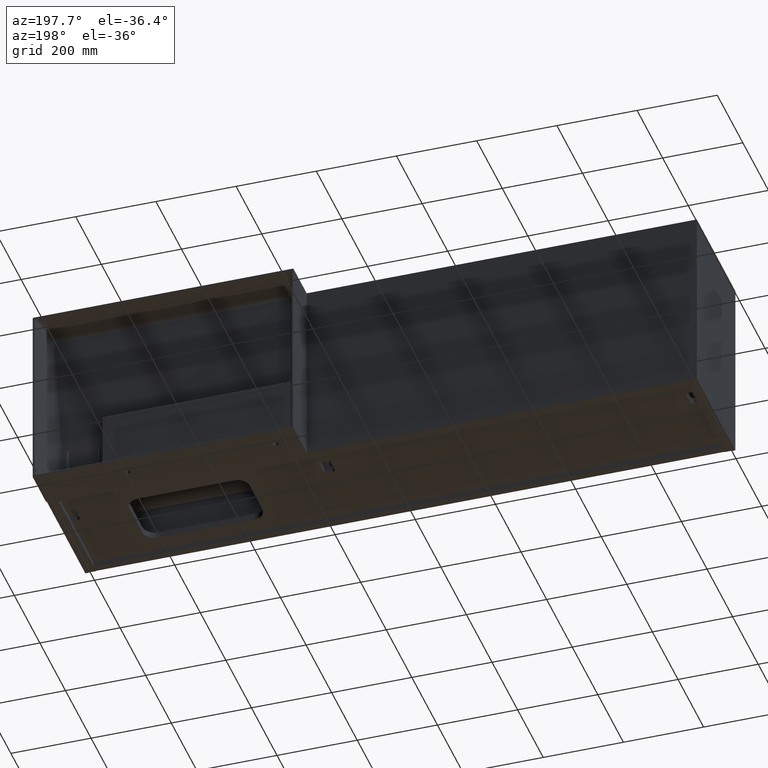
[diagram: clean part render]
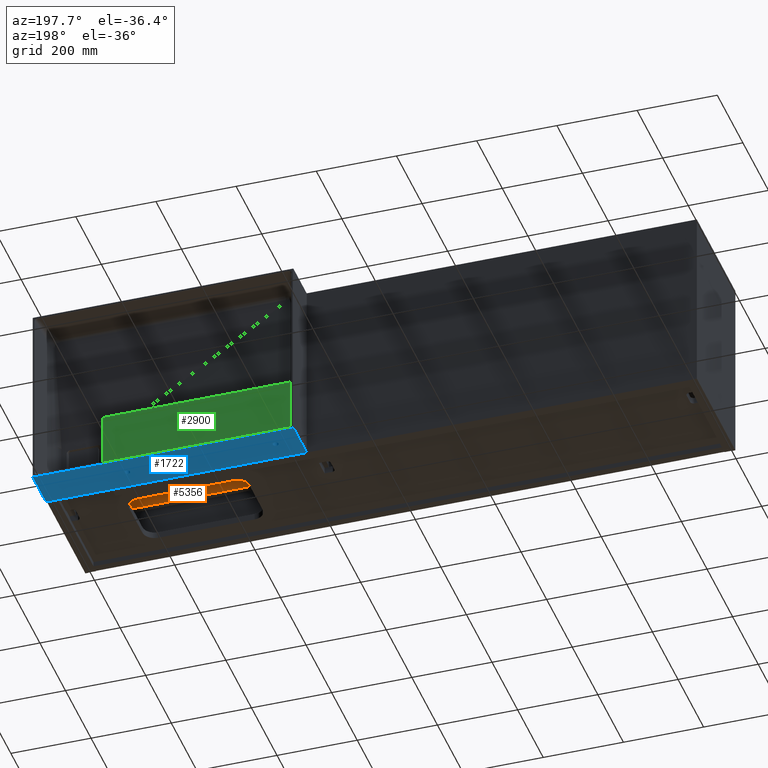
[diagram: same view with three faces highlighted in distinct colors, each labeled with its STEP entity id]
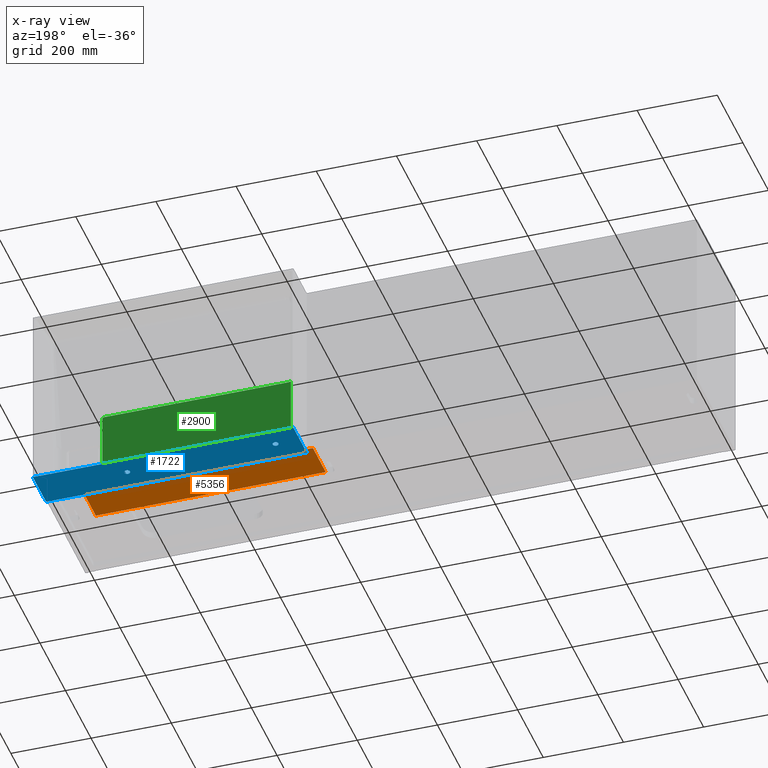
[diagram: x-ray of the same camera — body ghosted, the three highlighted faces saturated]
A machine part, auxiliary view with three faces highlighted in distinct colors.
The next image is the same camera in x-ray (body ghosted, the three faces saturated) — at least one of them is partly hidden behind the body in this view.
Their STEP definitions:

[orange] entity #5356 — the highlighted planar face has unit normal (0, 0, 1).
#124 = VECTOR ( 'NONE', #14026, 1000.000000000000000 ) ;
#387 = CARTESIAN_POINT ( 'NONE',  ( 1003.500000000000227, 61.49999999999995737, -354.0000000000000000 ) ) ;
#940 = DIRECTION ( 'NONE',  ( 0.0000000000000000000, -1.000000000000000000, 1.457098049790435372E-32 ) ) ;
#1056 = CARTESIAN_POINT ( 'NONE',  ( 1003.500000000000227, 162.4999999999999716, -354.0000000000000000 ) ) ;
#1235 = VECTOR ( 'NONE', #6049, 1000.000000000000000 ) ;
#1893 = ORIENTED_EDGE ( 'NONE', *, *, #15884, .F. ) ;
#2177 = PLANE ( 'NONE',  #2853 ) ;
#2853 = AXIS2_PLACEMENT_3D ( 'NONE', #7162, #12152, #940 ) ;
#2884 = CARTESIAN_POINT ( 'NONE',  ( 1003.500000000000227, 162.4999999999999716, -354.0000000000000000 ) ) ;
#3490 = DIRECTION ( 'NONE',  ( -1.000000000000000000, 1.209920471474670061E-16, -0.0000000000000000000 ) ) ;
#3699 = CARTESIAN_POINT ( 'NONE',  ( 1577.000000000000000, 162.4999999999998863, -354.0000000000000000 ) ) ;
#4043 = LINE ( 'NONE', #9028, #124 ) ;
#4589 = CARTESIAN_POINT ( 'NONE',  ( 1577.000000000000000, 61.49999999999988631, -354.0000000000000000 ) ) ;
#5356 = ADVANCED_FACE ( 'NONE', ( #13399 ), #2177, .F. ) ;
#5915 = VECTOR ( 'NONE', #3490, 1000.000000000000000 ) ;
#6049 = DIRECTION ( 'NONE',  ( -1.000000000000000000, 1.209920471474670061E-16, -0.0000000000000000000 ) ) ;
#6218 = ORIENTED_EDGE ( 'NONE', *, *, #11640, .T. ) ;
#6637 = VERTEX_POINT ( 'NONE', #15007 ) ;
#6684 = VERTEX_POINT ( 'NONE', #2884 ) ;
#7162 = CARTESIAN_POINT ( 'NONE',  ( 1003.500000000000227, 162.4999999999999716, -354.0000000000000000 ) ) ;
#8024 = ORIENTED_EDGE ( 'NONE', *, *, #11995, .F. ) ;
#8268 = VERTEX_POINT ( 'NONE', #387 ) ;
#8689 = DIRECTION ( 'NONE',  ( -1.203624267806977720E-16, -1.000000000000000000, 1.457098049790435372E-32 ) ) ;
#9028 = CARTESIAN_POINT ( 'NONE',  ( 1003.500000000000227, 162.4999999999999716, -354.0000000000000000 ) ) ;
#9702 = LINE ( 'NONE', #14704, #5915 ) ;
#10199 = EDGE_LOOP ( 'NONE', ( #15179, #8024, #1893, #6218 ) ) ;
#11640 = EDGE_CURVE ( 'NONE', #6637, #13417, #14911, .T. ) ;
#11995 = EDGE_CURVE ( 'NONE', #6684, #8268, #4043, .T. ) ;
#12152 = DIRECTION ( 'NONE',  ( 1.762972759387265858E-48, 1.457098049790435372E-32, 1.000000000000000000 ) ) ;
#12266 = LINE ( 'NONE', #1056, #1235 ) ;
#12404 = VECTOR ( 'NONE', #8689, 1000.000000000000000 ) ;
#13399 = FACE_OUTER_BOUND ( 'NONE', #10199, .T. ) ;
#13417 = VERTEX_POINT ( 'NONE', #4589 ) ;
#13546 = EDGE_CURVE ( 'NONE', #13417, #8268, #9702, .T. ) ;
#14026 = DIRECTION ( 'NONE',  ( -1.203624267806977720E-16, -1.000000000000000000, 1.457098049790435372E-32 ) ) ;
#14704 = CARTESIAN_POINT ( 'NONE',  ( 1003.500000000000227, 61.49999999999995737, -354.0000000000000000 ) ) ;
#14911 = LINE ( 'NONE', #3699, #12404 ) ;
#15007 = CARTESIAN_POINT ( 'NONE',  ( 1577.000000000000000, 162.4999999999998863, -354.0000000000000000 ) ) ;
#15179 = ORIENTED_EDGE ( 'NONE', *, *, #13546, .T. ) ;
#15884 = EDGE_CURVE ( 'NONE', #6637, #6684, #12266, .T. ) ;

[blue] entity #1722 — the highlighted planar face has unit normal (0, 0, 1).
#531 = DIRECTION ( 'NONE',  ( 0.0000000000000000000, -1.000000000000000000, -0.0000000000000000000 ) ) ;
#1113 = CARTESIAN_POINT ( 'NONE',  ( 1625.000000000000227, 404.9999999999999432, -470.0000000000000000 ) ) ;
#1224 = VECTOR ( 'NONE', #8495, 1000.000000000000000 ) ;
#1382 = CARTESIAN_POINT ( 'NONE',  ( 975.0000000000003411, 403.9999999999999432, -470.0000000000000000 ) ) ;
#1446 = DIRECTION ( 'NONE',  ( 1.000000000000000000, 0.0000000000000000000, 0.0000000000000000000 ) ) ;
#1509 = DIRECTION ( 'NONE',  ( -1.000000000000000000, -0.0000000000000000000, -0.0000000000000000000 ) ) ;
#1512 = EDGE_LOOP ( 'NONE', ( #14058, #11191 ) ) ;
#1693 = AXIS2_PLACEMENT_3D ( 'NONE', #10314, #15313, #4099 ) ;
#1722 = ADVANCED_FACE ( 'NONE', ( #13567, #2346, #7329 ), #12320, .F. ) ;
#2217 = AXIS2_PLACEMENT_3D ( 'NONE', #16000, #4784, #9771 ) ;
#2346 = FACE_BOUND ( 'NONE', #1512, .T. ) ;
#2361 = EDGE_CURVE ( 'NONE', #8628, #10776, #7737, .T. ) ;
#2493 = ORIENTED_EDGE ( 'NONE', *, *, #11138, .T. ) ;
#2683 = VERTEX_POINT ( 'NONE', #10017 ) ;
#3510 = CARTESIAN_POINT ( 'NONE',  ( 975.0000000000003411, 404.9999999999999432, -470.0000000000000000 ) ) ;
#3592 = ORIENTED_EDGE ( 'NONE', *, *, #16112, .T. ) ;
#3609 = ORIENTED_EDGE ( 'NONE', *, *, #3761, .T. ) ;
#3625 = VERTEX_POINT ( 'NONE', #15051 ) ;
#3761 = EDGE_CURVE ( 'NONE', #8628, #2683, #6757, .T. ) ;
#4099 = DIRECTION ( 'NONE',  ( 1.000000000000000000, 0.0000000000000000000, 0.0000000000000000000 ) ) ;
#4131 = CARTESIAN_POINT ( 'NONE',  ( 1625.000000000000227, 403.9999999999999432, -470.0000000000000000 ) ) ;
#4191 = CARTESIAN_POINT ( 'NONE',  ( 1412.000000000000227, 355.0000000000000000, -470.0000000000000000 ) ) ;
#4606 = VERTEX_POINT ( 'NONE', #13767 ) ;
#4723 = CARTESIAN_POINT ( 'NONE',  ( 1405.000000000000227, 355.0000000000000000, -470.0000000000000000 ) ) ;
#4784 = DIRECTION ( 'NONE',  ( -0.0000000000000000000, -0.0000000000000000000, 1.000000000000000000 ) ) ;
#4978 = DIRECTION ( 'NONE',  ( 1.000000000000000000, -0.0000000000000000000, -0.0000000000000000000 ) ) ;
#6107 = DIRECTION ( 'NONE',  ( 0.0000000000000000000, 0.0000000000000000000, 1.000000000000000000 ) ) ;
#6389 = VERTEX_POINT ( 'NONE', #10273 ) ;
#6738 = CIRCLE ( 'NONE', #15891, 6.999999999999895195 ) ;
#6757 = LINE ( 'NONE', #11742, #11014 ) ;
#7329 = FACE_OUTER_BOUND ( 'NONE', #9792, .T. ) ;
#7508 = VECTOR ( 'NONE', #4978, 1000.000000000000000 ) ;
#7678 = CARTESIAN_POINT ( 'NONE',  ( 1035.000000000000227, 355.0000000000000000, -470.0000000000000000 ) ) ;
#7737 = LINE ( 'NONE', #12725, #8118 ) ;
#7849 = ORIENTED_EDGE ( 'NONE', *, *, #16009, .F. ) ;
#8112 = VERTEX_POINT ( 'NONE', #12344 ) ;
#8118 = VECTOR ( 'NONE', #1509, 1000.000000000000000 ) ;
#8495 = DIRECTION ( 'NONE',  ( 0.0000000000000000000, -1.000000000000000000, -0.0000000000000000000 ) ) ;
#8628 = VERTEX_POINT ( 'NONE', #4131 ) ;
#8757 = CIRCLE ( 'NONE', #1693, 6.999999999999895195 ) ;
#8924 = AXIS2_PLACEMENT_3D ( 'NONE', #1113, #6107, #11104 ) ;
#9277 = CIRCLE ( 'NONE', #2217, 6.999999999999895195 ) ;
#9716 = DIRECTION ( 'NONE',  ( -0.0000000000000000000, -0.0000000000000000000, 1.000000000000000000 ) ) ;
#9771 = DIRECTION ( 'NONE',  ( 1.000000000000000000, 0.0000000000000000000, 0.0000000000000000000 ) ) ;
#9792 = EDGE_LOOP ( 'NONE', ( #3609, #7849, #9981, #11075 ) ) ;
#9981 = ORIENTED_EDGE ( 'NONE', *, *, #15004, .F. ) ;
#10017 = CARTESIAN_POINT ( 'NONE',  ( 1625.000000000000227, 300.0000000000000000, -470.0000000000000000 ) ) ;
#10273 = CARTESIAN_POINT ( 'NONE',  ( 1028.000000000000227, 355.0000000000000000, -470.0000000000000000 ) ) ;
#10314 = CARTESIAN_POINT ( 'NONE',  ( 1405.000000000000227, 355.0000000000000000, -470.0000000000000000 ) ) ;
#10776 = VERTEX_POINT ( 'NONE', #1382 ) ;
#11014 = VECTOR ( 'NONE', #531, 1000.000000000000000 ) ;
#11075 = ORIENTED_EDGE ( 'NONE', *, *, #2361, .F. ) ;
#11104 = DIRECTION ( 'NONE',  ( -1.000000000000000000, 0.0000000000000000000, 0.0000000000000000000 ) ) ;
#11138 = EDGE_CURVE ( 'NONE', #3625, #6389, #9277, .T. ) ;
#11191 = ORIENTED_EDGE ( 'NONE', *, *, #12438, .T. ) ;
#11203 = LINE ( 'NONE', #16195, #7508 ) ;
#11742 = CARTESIAN_POINT ( 'NONE',  ( 1625.000000000000227, 404.9999999999999432, -470.0000000000000000 ) ) ;
#11775 = EDGE_CURVE ( 'NONE', #14254, #8112, #8757, .T. ) ;
#12320 = PLANE ( 'NONE',  #8924 ) ;
#12344 = CARTESIAN_POINT ( 'NONE',  ( 1398.000000000000455, 355.0000000000000000, -470.0000000000000000 ) ) ;
#12418 = CIRCLE ( 'NONE', #14519, 6.999999999999895195 ) ;
#12438 = EDGE_CURVE ( 'NONE', #8112, #14254, #12418, .T. ) ;
#12665 = DIRECTION ( 'NONE',  ( -0.0000000000000000000, -0.0000000000000000000, 1.000000000000000000 ) ) ;
#12725 = CARTESIAN_POINT ( 'NONE',  ( 1625.000000000000227, 403.9999999999999432, -470.0000000000000000 ) ) ;
#13567 = FACE_BOUND ( 'NONE', #15911, .T. ) ;
#13767 = CARTESIAN_POINT ( 'NONE',  ( 975.0000000000003411, 300.0000000000000000, -470.0000000000000000 ) ) ;
#14058 = ORIENTED_EDGE ( 'NONE', *, *, #11775, .T. ) ;
#14254 = VERTEX_POINT ( 'NONE', #4191 ) ;
#14519 = AXIS2_PLACEMENT_3D ( 'NONE', #4723, #9716, #14720 ) ;
#14720 = DIRECTION ( 'NONE',  ( 1.000000000000000000, 0.0000000000000000000, 0.0000000000000000000 ) ) ;
#14726 = LINE ( 'NONE', #3510, #1224 ) ;
#15004 = EDGE_CURVE ( 'NONE', #10776, #4606, #14726, .T. ) ;
#15051 = CARTESIAN_POINT ( 'NONE',  ( 1042.000000000000000, 355.0000000000000000, -470.0000000000000000 ) ) ;
#15313 = DIRECTION ( 'NONE',  ( -0.0000000000000000000, -0.0000000000000000000, 1.000000000000000000 ) ) ;
#15891 = AXIS2_PLACEMENT_3D ( 'NONE', #7678, #12665, #1446 ) ;
#15911 = EDGE_LOOP ( 'NONE', ( #2493, #3592 ) ) ;
#16000 = CARTESIAN_POINT ( 'NONE',  ( 1035.000000000000227, 355.0000000000000000, -470.0000000000000000 ) ) ;
#16009 = EDGE_CURVE ( 'NONE', #4606, #2683, #11203, .T. ) ;
#16112 = EDGE_CURVE ( 'NONE', #6389, #3625, #6738, .T. ) ;
#16195 = CARTESIAN_POINT ( 'NONE',  ( 1625.000000000000227, 300.0000000000000000, -470.0000000000000000 ) ) ;

[green] entity #2900 — the highlighted planar face has unit normal (0, 1, 0).
#141 = CARTESIAN_POINT ( 'NONE',  ( 985.6307633916155737, 395.0000000000001137, -324.8999211131446714 ) ) ;
#230 = ORIENTED_EDGE ( 'NONE', *, *, #805, .F. ) ;
#591 = CARTESIAN_POINT ( 'NONE',  ( 992.0093630388657857, 395.0000000000000000, -325.9741568709216608 ) ) ;
#763 = LINE ( 'NONE', #5750, #8694 ) ;
#805 = EDGE_CURVE ( 'NONE', #16010, #14791, #1109, .T. ) ;
#813 = CARTESIAN_POINT ( 'NONE',  ( 1454.258164734801085, 395.0000000000000568, -455.4245869311437218 ) ) ;
#1109 = LINE ( 'NONE', #6103, #15481 ) ;
#1280 = CARTESIAN_POINT ( 'NONE',  ( 1454.025843129078567, 395.0000000000000000, -451.1449057083924004 ) ) ;
#1330 = EDGE_CURVE ( 'NONE', #11326, #2754, #2211, .T. ) ;
#1366 = CARTESIAN_POINT ( 'NONE',  ( 988.2355843847058168, 395.0000000000001705, -325.7355729384424308 ) ) ;
#1738 = DIRECTION ( 'NONE',  ( 0.0000000000000000000, 0.0000000000000000000, 1.000000000000000000 ) ) ;
#1788 = CARTESIAN_POINT ( 'NONE',  ( 1456.903768405305982, 395.0000000000000000, -460.7858540997308410 ) ) ;
#2040 = CARTESIAN_POINT ( 'NONE',  ( 1454.961618533546698, 395.0000000000002842, -457.9211539023941668 ) ) ;
#2211 = B_SPLINE_CURVE_WITH_KNOTS ( 'NONE', 3,
 ( #3838, #8820, #13817, #2603, #7588, #12577, #1366, #6361, #11354, #141, #5134, #10133, #15129, #3915 ),
 .UNSPECIFIED., .F., .F.,
 ( 4, 2, 2, 2, 2, 2, 4 ),
 ( 0.0000000000000000000, 0.002062643345217384915, 0.003093965017826077590, 0.004125286690434769830, 0.006187930035651793489, 0.007219251708260456674, 0.008250573380869119858 ),
 .UNSPECIFIED. ) ;
#2318 = DIRECTION ( 'NONE',  ( -1.982541115402065356E-16, 0.0000000000000000000, 1.000000000000000000 ) ) ;
#2555 = CARTESIAN_POINT ( 'NONE',  ( 1450.027213829176389, 395.0000000000000000, -325.9741568709216608 ) ) ;
#2603 = CARTESIAN_POINT ( 'NONE',  ( 989.6031032880887324, 395.0000000000003979, -325.9081120509785592 ) ) ;
#2658 = ORIENTED_EDGE ( 'NONE', *, *, #14034, .F. ) ;
#2754 = VERTEX_POINT ( 'NONE', #5180 ) ;
#2899 = AXIS2_PLACEMENT_3D ( 'NONE', #7962, #12963, #1738 ) ;
#2900 = ADVANCED_FACE ( 'NONE', ( #14192 ), #2978, .T. ) ;
#2978 = PLANE ( 'NONE',  #2899 ) ;
#3024 = EDGE_LOOP ( 'NONE', ( #230, #5083, #10577, #11460, #11112, #2658, #16187 ) ) ;
#3276 = CARTESIAN_POINT ( 'NONE',  ( 1455.759523895694201, 394.9999999999998295, -459.4611088881936212 ) ) ;
#3604 = CARTESIAN_POINT ( 'NONE',  ( 1450.027213829176389, 395.0000000000000000, -325.9741568709216608 ) ) ;
#3789 = CARTESIAN_POINT ( 'NONE',  ( 1454.025843129078567, 395.0000000000000000, -329.9727861708239516 ) ) ;
#3798 = CARTESIAN_POINT ( 'NONE',  ( 1300.000000000000227, 395.0000000000000000, -325.9741568709216608 ) ) ;
#3838 = CARTESIAN_POINT ( 'NONE',  ( 992.0093630388657857, 395.0000000000000000, -325.9741568709216608 ) ) ;
#3915 = CARTESIAN_POINT ( 'NONE',  ( 984.2141459002693864, 395.0000000000000000, -323.9227097565687927 ) ) ;
#4334 = EDGE_CURVE ( 'NONE', #14791, #9485, #14321, .T. ) ;
#4499 = CARTESIAN_POINT ( 'NONE',  ( 1456.903768405305982, 395.0000000000000000, -460.7858540997308410 ) ) ;
#4582 = CARTESIAN_POINT ( 'NONE',  ( 1454.025843129078567, 395.0000000000000000, -451.1449057083924004 ) ) ;
#5083 = ORIENTED_EDGE ( 'NONE', *, *, #8752, .F. ) ;
#5134 = CARTESIAN_POINT ( 'NONE',  ( 985.3243234332736620, 395.0000000000000000, -324.7357828460448559 ) ) ;
#5180 = CARTESIAN_POINT ( 'NONE',  ( 984.2141459002693864, 395.0000000000000000, -323.9227097565687927 ) ) ;
#5750 = CARTESIAN_POINT ( 'NONE',  ( 984.2141459002693864, 395.0000000000000000, -235.0000000000000853 ) ) ;
#5804 = CARTESIAN_POINT ( 'NONE',  ( 1454.147612315442984, 394.9999999999998295, -454.5767451132575161 ) ) ;
#6103 = CARTESIAN_POINT ( 'NONE',  ( 1300.000000000000227, 395.0000000000000000, -460.7858540997308410 ) ) ;
#6162 = CARTESIAN_POINT ( 'NONE',  ( 1454.025843129078567, 395.0000000000000000, -329.9727861708239516 ) ) ;
#6361 = CARTESIAN_POINT ( 'NONE',  ( 987.2286717636822004, 395.0000000000001137, -325.5247354199295842 ) ) ;
#7032 = CARTESIAN_POINT ( 'NONE',  ( 1454.669399297988321, 395.0000000000002842, -457.0962568864613331 ) ) ;
#7451 = EDGE_CURVE ( 'NONE', #15929, #11326, #15009, .T. ) ;
#7588 = CARTESIAN_POINT ( 'NONE',  ( 989.2604613877726933, 394.9999999999998863, -325.8775157247927723 ) ) ;
#7962 = CARTESIAN_POINT ( 'NONE',  ( 1300.000000000000227, 395.0000000000000000, -235.0000000000000000 ) ) ;
#8262 = CARTESIAN_POINT ( 'NONE',  ( 1455.531474925528528, 395.0000000000001137, -459.0918373645997690 ) ) ;
#8534 = LINE ( 'NONE', #13541, #13253 ) ;
#8694 = VECTOR ( 'NONE', #10756, 1000.000000000000000 ) ;
#8752 = EDGE_CURVE ( 'NONE', #2754, #16010, #763, .T. ) ;
#8773 = CARTESIAN_POINT ( 'NONE',  ( 1454.025843129078112, 394.9999999999999432, -327.6301110647708015 ) ) ;
#8782 = DIRECTION ( 'NONE',  ( -1.000000000000000000, 0.0000000000000000000, 5.843279076974509016E-17 ) ) ;
#8820 = CARTESIAN_POINT ( 'NONE',  ( 991.3208708988747730, 395.0000000000000000, -325.9741568709463877 ) ) ;
#8968 = VERTEX_POINT ( 'NONE', #6162 ) ;
#9485 = VERTEX_POINT ( 'NONE', #1280 ) ;
#9493 = CARTESIAN_POINT ( 'NONE',  ( 1456.579626220514228, 394.9999999999998863, -460.4889491759980160 ) ) ;
#9976 = CARTESIAN_POINT ( 'NONE',  ( 984.2141459002693864, 395.0000000000000000, -460.7858540997308410 ) ) ;
#10133 = CARTESIAN_POINT ( 'NONE',  ( 984.7455617612929473, 394.9999999999999432, -324.3644778535575597 ) ) ;
#10577 = ORIENTED_EDGE ( 'NONE', *, *, #1330, .F. ) ;
#10756 = DIRECTION ( 'NONE',  ( 2.413528314402515076E-16, -0.0000000000000000000, -1.000000000000000000 ) ) ;
#10807 = CARTESIAN_POINT ( 'NONE',  ( 1454.029782195307234, 394.9999999999999432, -452.8680177196098384 ) ) ;
#11100 = DIRECTION ( 'NONE',  ( 1.000000000000000000, -0.0000000000000000000, -0.0000000000000000000 ) ) ;
#11112 = ORIENTED_EDGE ( 'NONE', *, *, #14122, .F. ) ;
#11326 = VERTEX_POINT ( 'NONE', #591 ) ;
#11354 = CARTESIAN_POINT ( 'NONE',  ( 986.5742237291171932, 395.0000000000001137, -325.3268668704505444 ) ) ;
#11448 =( BOUNDED_CURVE ( )  B_SPLINE_CURVE ( 3, ( #3789, #8773, #13772, #2555 ),
 .UNSPECIFIED., .F., .F. ) 
 B_SPLINE_CURVE_WITH_KNOTS ( ( 4, 4 ),
 ( 2.356537106530507408, 3.926648200649022868 ),
 .UNSPECIFIED. ) 
 CURVE ( )  GEOMETRIC_REPRESENTATION_ITEM ( )  RATIONAL_B_SPLINE_CURVE ( ( 1.000000000000000000, 0.8048993373437902665, 0.8048993373437902665, 1.000000000000000000 ) ) 
 REPRESENTATION_ITEM ( '' )  );
#11460 = ORIENTED_EDGE ( 'NONE', *, *, #7451, .F. ) ;
#11531 = VECTOR ( 'NONE', #8782, 1000.000000000000000 ) ;
#12018 = CARTESIAN_POINT ( 'NONE',  ( 1454.550745626456091, 395.0000000000000000, -456.6803406497029414 ) ) ;
#12577 = CARTESIAN_POINT ( 'NONE',  ( 988.5764921108858516, 394.9999999999999432, -325.7912511627890240 ) ) ;
#12963 = DIRECTION ( 'NONE',  ( 0.0000000000000000000, 1.000000000000000000, 0.0000000000000000000 ) ) ;
#13253 = VECTOR ( 'NONE', #2318, 1000.000000000000000 ) ;
#13266 = CARTESIAN_POINT ( 'NONE',  ( 1455.132669146402350, 395.0000000000000568, -458.3223080525927458 ) ) ;
#13541 = CARTESIAN_POINT ( 'NONE',  ( 1454.025843129078567, 395.0000000000000000, -235.0000000000000000 ) ) ;
#13772 = CARTESIAN_POINT ( 'NONE',  ( 1452.369888935229483, 394.9999999999999432, -325.9741568709217745 ) ) ;
#13817 = CARTESIAN_POINT ( 'NONE',  ( 990.6325137807954206, 395.0000000000002274, -325.9715815982376625 ) ) ;
#14034 = EDGE_CURVE ( 'NONE', #9485, #8968, #8534, .T. ) ;
#14122 = EDGE_CURVE ( 'NONE', #8968, #15929, #11448, .T. ) ;
#14192 = FACE_OUTER_BOUND ( 'NONE', #3024, .T. ) ;
#14321 = B_SPLINE_CURVE_WITH_KNOTS ( 'NONE', 3,
 ( #4499, #9493, #14491, #3276, #8262, #13266, #2040, #7032, #12018, #813, #5804, #10807, #15796, #4582 ),
 .UNSPECIFIED., .F., .F.,
 ( 4, 2, 2, 2, 2, 2, 4 ),
 ( 0.0000000000000000000, 0.001314175442862175643, 0.002628350885724351285, 0.003942526328586526928, 0.005256701771448702570, 0.007885052657173053856, 0.01051340354289740514 ),
 .UNSPECIFIED. ) ;
#14491 = CARTESIAN_POINT ( 'NONE',  ( 1456.285022511821808, 394.9999999999998295, -460.1621168228376746 ) ) ;
#14791 = VERTEX_POINT ( 'NONE', #1788 ) ;
#15009 = LINE ( 'NONE', #3798, #11531 ) ;
#15129 = CARTESIAN_POINT ( 'NONE',  ( 984.4712327410501302, 395.0000000000000568, -324.1564242695624785 ) ) ;
#15481 = VECTOR ( 'NONE', #11100, 1000.000000000000000 ) ;
#15796 = CARTESIAN_POINT ( 'NONE',  ( 1454.025843128825954, 395.0000000000000000, -452.0067104691340774 ) ) ;
#15929 = VERTEX_POINT ( 'NONE', #3604 ) ;
#16010 = VERTEX_POINT ( 'NONE', #9976 ) ;
#16187 = ORIENTED_EDGE ( 'NONE', *, *, #4334, .F. ) ;